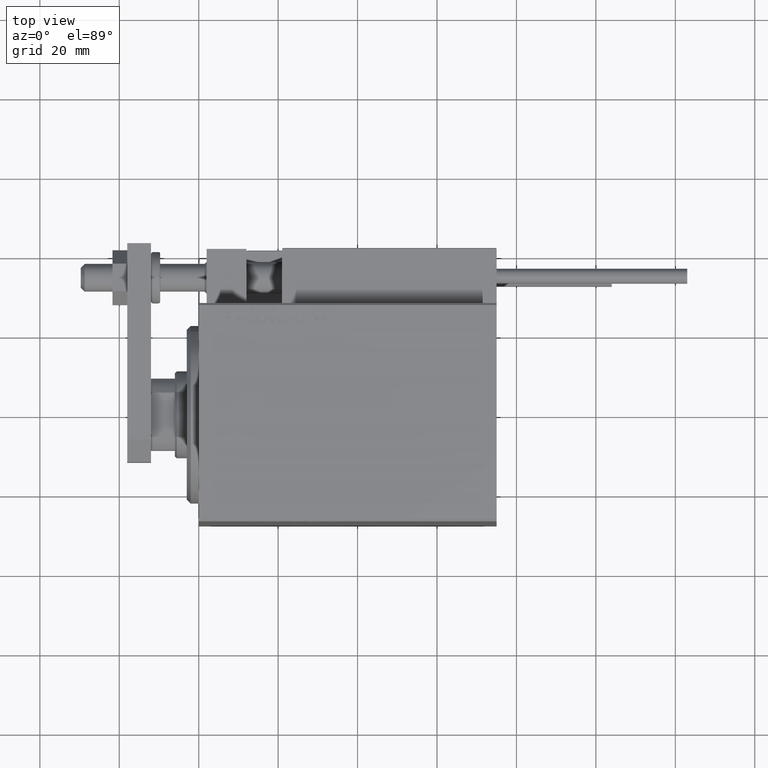
[diagram: clean part render]
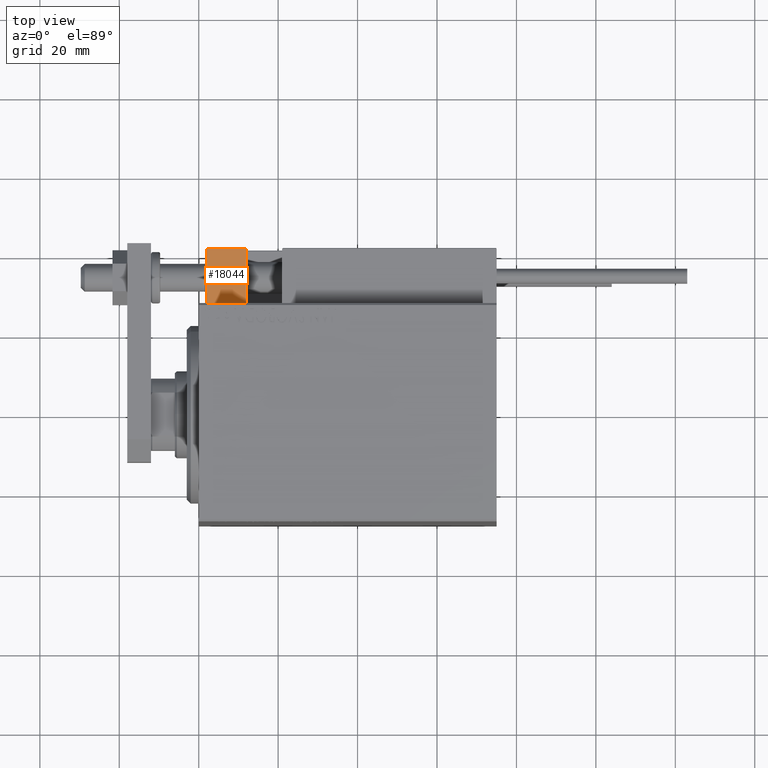
[diagram: same view with one face highlighted and labeled with its STEP entity id]
A machine part, top view. The second image highlights one B-rep face of the part: STEP entity #18044.
In plain terms, the highlighted planar face has unit normal (0, 0, 1).
Its self-contained STEP definition (entity closure, byte-faithful):
#2160 = ORIENTED_EDGE ( 'NONE', *, *, #40816, .F. ) ;
#5668 = VERTEX_POINT ( 'NONE', #15832 ) ;
#6110 = FACE_OUTER_BOUND ( 'NONE', #46152, .T. ) ;
#8310 = CARTESIAN_POINT ( 'NONE',  ( 10.00000000000000000, 7.000000000000000000, -16.00000000000000711 ) ) ;
#10387 = DIRECTION ( 'NONE',  ( -1.000000000000000000, 0.000000000000000000, -0.000000000000000000 ) ) ;
#10729 = DIRECTION ( 'NONE',  ( -1.000000000000000000, -0.000000000000000000, -0.000000000000000000 ) ) ;
#12333 = DIRECTION ( 'NONE',  ( 0.000000000000000000, -1.000000000000000000, 0.000000000000000000 ) ) ;
#15832 = CARTESIAN_POINT ( 'NONE',  ( 10.00000000000000000, 7.000000000000000000, -16.00000000000000711 ) ) ;
#15904 = LINE ( 'NONE', #31306, #44325 ) ;
#18044 = ADVANCED_FACE ( 'NONE', ( #6110 ), #21484, .T. ) ;
#19440 = EDGE_CURVE ( 'NONE', #19604, #26531, #46062, .T. ) ;
#19604 = VERTEX_POINT ( 'NONE', #48231 ) ;
#19896 = LINE ( 'NONE', #8310, #36618 ) ;
#20981 = CARTESIAN_POINT ( 'NONE',  ( 0.000000000000000000, -7.000000000000000000, -16.00000000000000711 ) ) ;
#21484 = PLANE ( 'NONE',  #27969 ) ;
#21603 = VERTEX_POINT ( 'NONE', #24723 ) ;
#24723 = CARTESIAN_POINT ( 'NONE',  ( 0.000000000000000000, 7.000000000000000000, -16.00000000000000711 ) ) ;
#26531 = VERTEX_POINT ( 'NONE', #20981 ) ;
#27764 = DIRECTION ( 'NONE',  ( 0.000000000000000000, -1.000000000000000000, 0.000000000000000000 ) ) ;
#27969 = AXIS2_PLACEMENT_3D ( 'NONE', #36890, #29564, #10387 ) ;
#28267 = CARTESIAN_POINT ( 'NONE',  ( 0.000000000000000000, 7.000000000000000000, -16.00000000000000711 ) ) ;
#28403 = VECTOR ( 'NONE', #27764, 1000.000000000000000 ) ;
#29564 = DIRECTION ( 'NONE',  ( 0.000000000000000000, 0.000000000000000000, -1.000000000000000000 ) ) ;
#30416 = EDGE_CURVE ( 'NONE', #5668, #21603, #15904, .T. ) ;
#31262 = VECTOR ( 'NONE', #10729, 1000.000000000000000 ) ;
#31306 = CARTESIAN_POINT ( 'NONE',  ( 10.00000000000000000, 7.000000000000000000, -16.00000000000000711 ) ) ;
#31323 = LINE ( 'NONE', #28267, #28403 ) ;
#33208 = ORIENTED_EDGE ( 'NONE', *, *, #30416, .F. ) ;
#36618 = VECTOR ( 'NONE', #12333, 1000.000000000000000 ) ;
#36890 = CARTESIAN_POINT ( 'NONE',  ( 10.00000000000000000, 7.000000000000000000, -16.00000000000000711 ) ) ;
#40621 = ORIENTED_EDGE ( 'NONE', *, *, #44866, .T. ) ;
#40816 = EDGE_CURVE ( 'NONE', #21603, #26531, #31323, .T. ) ;
#43063 = ORIENTED_EDGE ( 'NONE', *, *, #19440, .T. ) ;
#44325 = VECTOR ( 'NONE', #46721, 1000.000000000000000 ) ;
#44866 = EDGE_CURVE ( 'NONE', #5668, #19604, #19896, .T. ) ;
#45323 = CARTESIAN_POINT ( 'NONE',  ( 10.00000000000000000, -7.000000000000000000, -16.00000000000000711 ) ) ;
#46062 = LINE ( 'NONE', #45323, #31262 ) ;
#46152 = EDGE_LOOP ( 'NONE', ( #2160, #33208, #40621, #43063 ) ) ;
#46721 = DIRECTION ( 'NONE',  ( -1.000000000000000000, -0.000000000000000000, -0.000000000000000000 ) ) ;
#48231 = CARTESIAN_POINT ( 'NONE',  ( 10.00000000000000000, -7.000000000000000000, -16.00000000000000711 ) ) ;